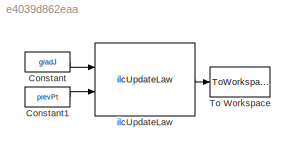
MODEL slx_e4039d862eaa
KIND model
CONFIG AbsTol = auto
CONFIG EnableMultiTasking = off
CONFIG FixedStep = auto
CONFIG MaxStep = auto
CONFIG MinStep = auto
CONFIG RelTol = 1e-3
CONFIG SampleTimeConstraint = Unconstrained
CONFIG SolverName = VariableStepAuto
CONFIG StartTime = 0.0
CONFIG StopTime = 0
BLOCK [Constant] Constant
  Value = gradJ
BLOCK [Constant] Constant1
  Value = prevPt
BLOCK [ToWorkspace] To Workspace
  FixptAsFi = on
  MaxDataPoints = inf
  Ports = [1]
  SampleTime = -1
  SaveFormat = Timeseries
  VariableName = nextPt
BLOCK [Reference] ilcUpdateLaw  REF=ilcUpdateLaw_cl/ilcUpdateLaw
  Ports = [2, 1]
  SourceBlock = ilcUpdateLaw_cl/ilcUpdateLaw
LINE Constant1:1 -> ilcUpdateLaw:2
LINE Constant:1 -> ilcUpdateLaw:1
LINE ilcUpdateLaw:1 -> To Workspace:1
